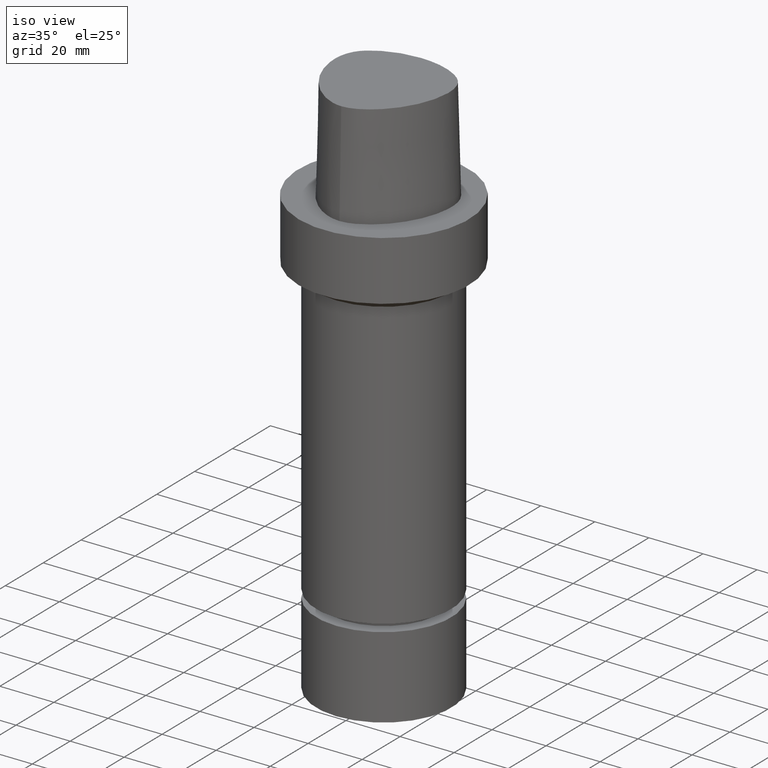
[diagram: clean part render]
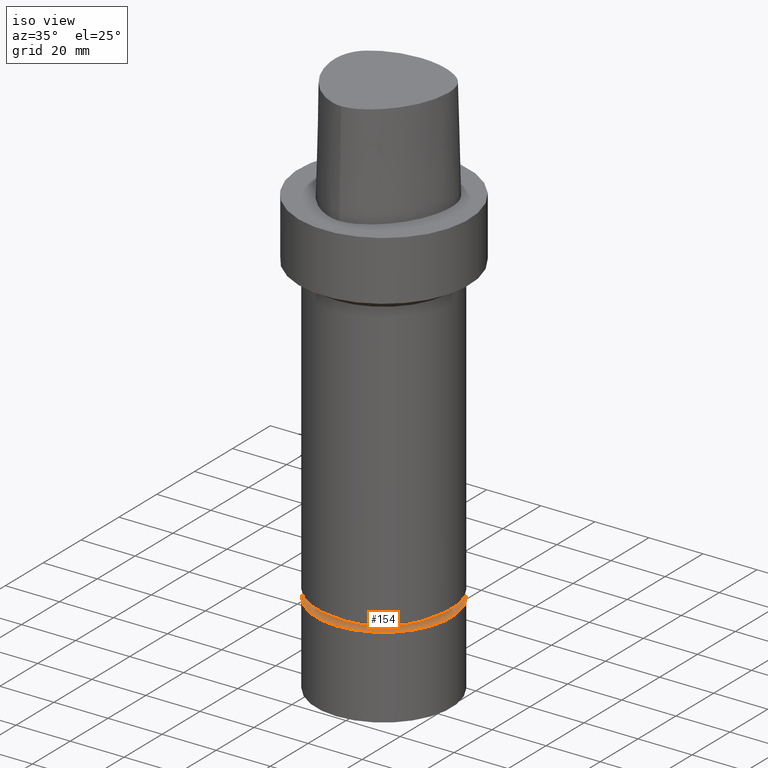
[diagram: same view with one face highlighted and labeled with its STEP entity id]
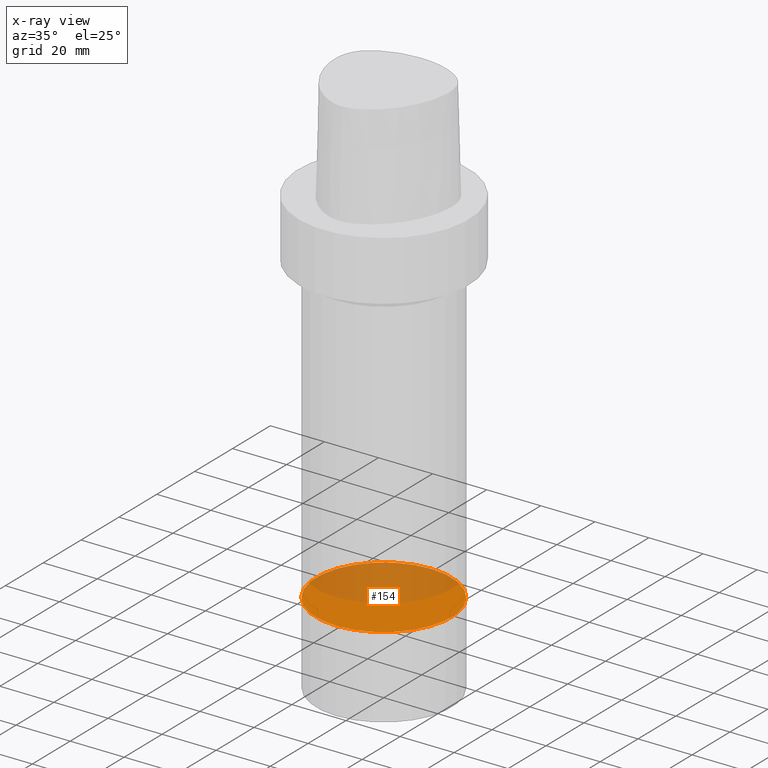
[diagram: x-ray of the same camera — body ghosted, the highlighted face saturated]
A machine part, iso view. The second image highlights one B-rep face of the part: STEP entity #154.
The next image is the same camera in x-ray: the body ghosted, the highlighted face saturated — about 49% of this face is hidden behind the body in this view.
In plain terms, the highlighted planar face has unit normal (-0, -0, 1).
Its self-contained STEP definition (entity closure, byte-faithful):
#154=ADVANCED_FACE('Unnamed[1]',(#312),#313,.T.);
#156=EDGE_CURVE('Unnamed[1]',#315,#315,#316,.T.);
#312=FACE_OUTER_BOUND('',#618,.T.);
#313=PLANE('',#619);
#315=VERTEX_POINT('',#622);
#316=CIRCLE('',#623,25.0);
#618=EDGE_LOOP('',(#858));
#619=AXIS2_PLACEMENT_3D('',#859,#860,#861);
#622=CARTESIAN_POINT('',(8.25411942625316E-015,25.0,-134.8));
#623=AXIS2_PLACEMENT_3D('',#862,#863,#864);
#858=ORIENTED_EDGE('',*,*,#156,.F.);
#859=CARTESIAN_POINT('',(8.25411942625316E-015,12.5,-134.8));
#860=DIRECTION('',(-6.12323399573677E-017,-1.22464679914735E-016,1.0));
#861=DIRECTION('',(1.23259516440783E-032,-1.0,-1.22464679914735E-016));
#862=CARTESIAN_POINT('',(8.25411942625316E-015,1.65082388525063E-014,-134.8));
#863=DIRECTION('',(6.12323399573677E-017,1.22464679914735E-016,-1.0));
#864=DIRECTION('',(-1.23259516440783E-032,1.0,1.22464679914735E-016));